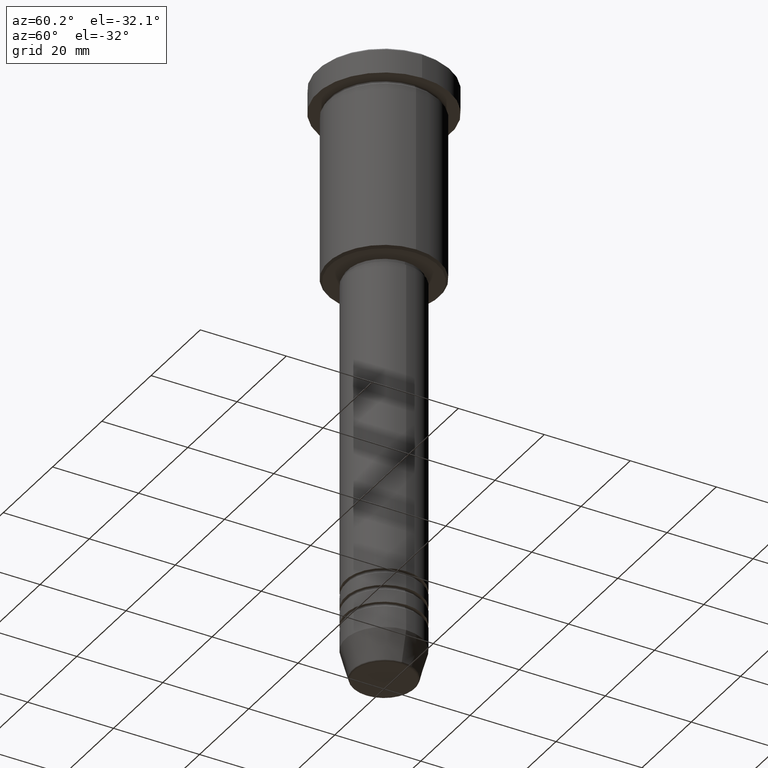
[diagram: clean part render]
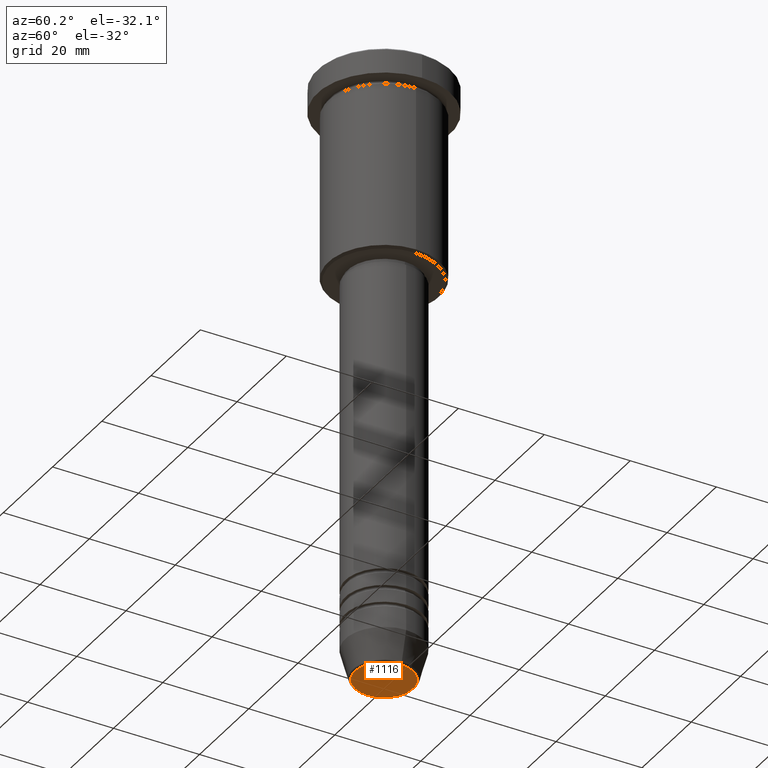
[diagram: same view with one face highlighted and labeled with its STEP entity id]
A machine part, auxiliary view. The second image highlights one B-rep face of the part: STEP entity #1116.
In plain terms, the highlighted planar face has unit normal (0, -0, 1).
Its self-contained STEP definition (entity closure, byte-faithful):
#120 = CARTESIAN_POINT ( 'NONE',  ( 0.000000000000000000, 0.000000000000000000, -141.0000000000000000 ) ) ;
#284 = VERTEX_POINT ( 'NONE', #1182 ) ;
#342 = CIRCLE ( 'NONE', #418, 6.740692158992658278 ) ;
#408 = EDGE_CURVE ( 'NONE', #284, #1152, #342, .T. ) ;
#418 = AXIS2_PLACEMENT_3D ( 'NONE', #944, #645, #1111 ) ;
#496 = DIRECTION ( 'NONE',  ( 1.000000000000000000, 0.000000000000000000, 0.000000000000000000 ) ) ;
#505 = DIRECTION ( 'NONE',  ( 0.000000000000000000, -0.000000000000000000, 1.000000000000000000 ) ) ;
#512 = CARTESIAN_POINT ( 'NONE',  ( 0.000000000000000000, 0.000000000000000000, -141.0000000000000000 ) ) ;
#585 = AXIS2_PLACEMENT_3D ( 'NONE', #512, #505, #695 ) ;
#645 = DIRECTION ( 'NONE',  ( 0.000000000000000000, 0.000000000000000000, -1.000000000000000000 ) ) ;
#695 = DIRECTION ( 'NONE',  ( 1.000000000000000000, 0.000000000000000000, 0.000000000000000000 ) ) ;
#696 = EDGE_CURVE ( 'NONE', #1152, #284, #906, .T. ) ;
#818 = CARTESIAN_POINT ( 'NONE',  ( -6.740692158992658278, 8.550696569392685681E-16, -141.0000000000000000 ) ) ;
#878 = AXIS2_PLACEMENT_3D ( 'NONE', #120, #1130, #496 ) ;
#906 = CIRCLE ( 'NONE', #878, 6.740692158992658278 ) ;
#944 = CARTESIAN_POINT ( 'NONE',  ( 0.000000000000000000, 0.000000000000000000, -141.0000000000000000 ) ) ;
#956 = PLANE ( 'NONE',  #585 ) ;
#964 = ORIENTED_EDGE ( 'NONE', *, *, #696, .T. ) ;
#1013 = EDGE_LOOP ( 'NONE', ( #1087, #964 ) ) ;
#1051 = FACE_OUTER_BOUND ( 'NONE', #1013, .T. ) ;
#1087 = ORIENTED_EDGE ( 'NONE', *, *, #408, .T. ) ;
#1111 = DIRECTION ( 'NONE',  ( 1.000000000000000000, 0.000000000000000000, 0.000000000000000000 ) ) ;
#1116 = ADVANCED_FACE ( 'NONE', ( #1051 ), #956, .F. ) ;
#1130 = DIRECTION ( 'NONE',  ( 0.000000000000000000, 0.000000000000000000, -1.000000000000000000 ) ) ;
#1152 = VERTEX_POINT ( 'NONE', #818 ) ;
#1182 = CARTESIAN_POINT ( 'NONE',  ( 6.740692158992658278, 0.000000000000000000, -141.0000000000000000 ) ) ;